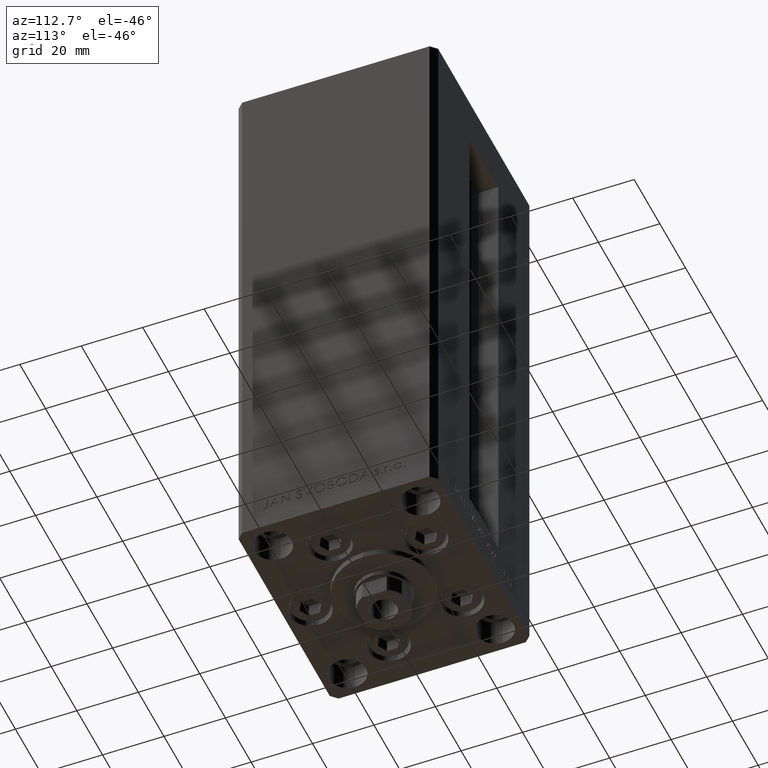
[diagram: clean part render]
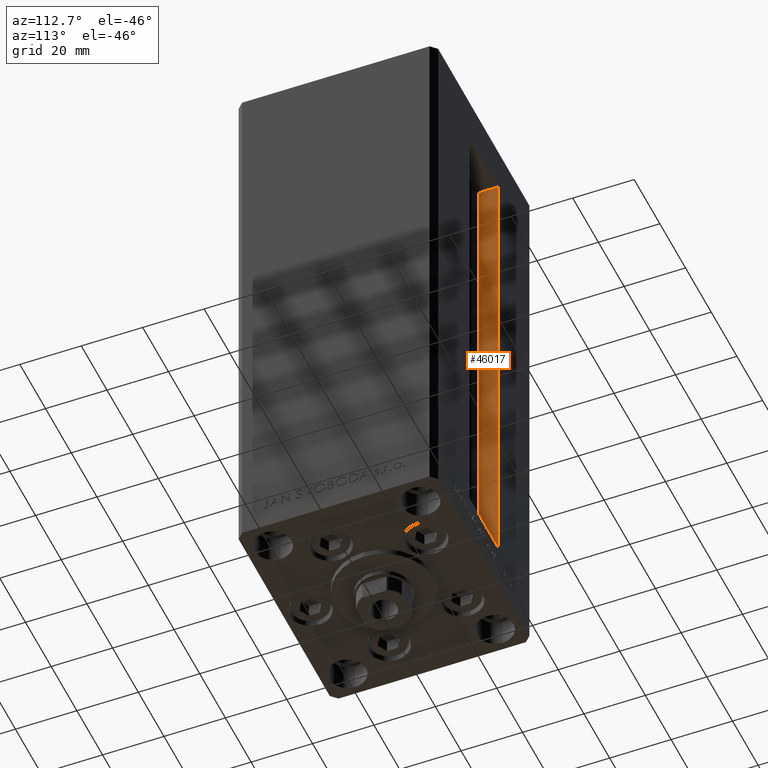
[diagram: same view with one face highlighted and labeled with its STEP entity id]
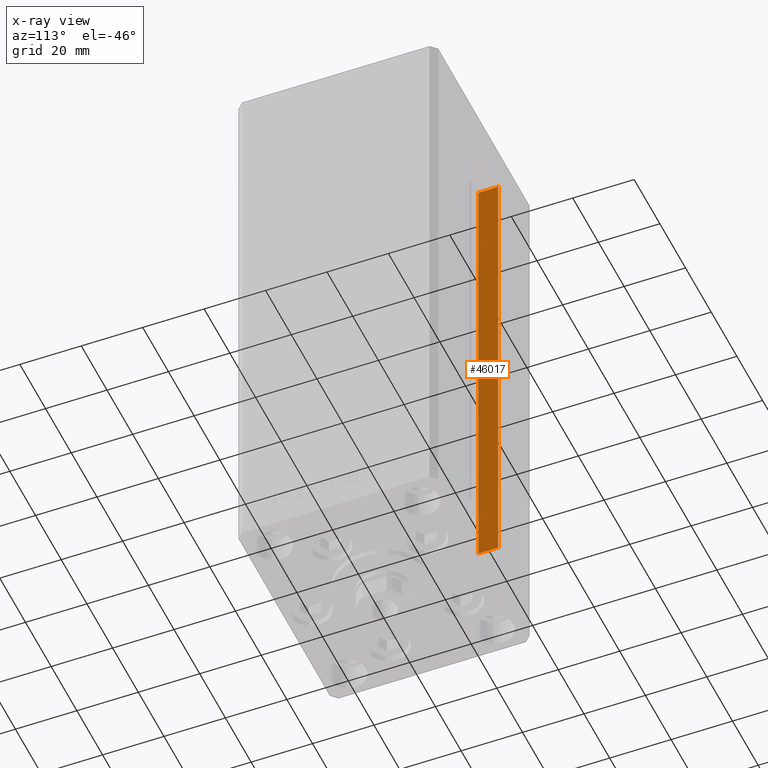
[diagram: x-ray of the same camera — body ghosted, the highlighted face saturated]
A machine part, auxiliary view. The second image highlights one B-rep face of the part: STEP entity #46017.
The next image is the same camera in x-ray: the body ghosted, the highlighted face saturated — about 0% of this face is hidden behind the body in this view.
In plain terms, the highlighted planar face has unit normal (-1, 0, 0).
Its self-contained STEP definition (entity closure, byte-faithful):
#3468 = DIRECTION ( 'NONE',  ( -0.000000000000000000, -0.000000000000000000, 1.000000000000000000 ) ) ;
#5169 = CARTESIAN_POINT ( 'NONE',  ( -11.25000000000000178, 32.49999999999999289, 0.000000000000000000 ) ) ;
#5950 = LINE ( 'NONE', #28579, #16881 ) ;
#6269 = ORIENTED_EDGE ( 'NONE', *, *, #41354, .F. ) ;
#6494 = AXIS2_PLACEMENT_3D ( 'NONE', #35198, #24151, #12557 ) ;
#6498 = LINE ( 'NONE', #11227, #29050 ) ;
#11227 = CARTESIAN_POINT ( 'NONE',  ( -11.25000000000000178, 25.99999999999999289, 0.000000000000000000 ) ) ;
#11952 = EDGE_CURVE ( 'NONE', #34766, #27546, #6498, .T. ) ;
#12557 = DIRECTION ( 'NONE',  ( 0.000000000000000000, 0.000000000000000000, 1.000000000000000000 ) ) ;
#16239 = EDGE_LOOP ( 'NONE', ( #18004, #41858, #43588, #6269 ) ) ;
#16881 = VECTOR ( 'NONE', #17252, 1000.000000000000000 ) ;
#16926 = CARTESIAN_POINT ( 'NONE',  ( -11.25000000000000178, 25.99999999999999289, 0.000000000000000000 ) ) ;
#17171 = DIRECTION ( 'NONE',  ( -0.000000000000000000, -1.000000000000000000, -0.000000000000000000 ) ) ;
#17252 = DIRECTION ( 'NONE',  ( 0.000000000000000000, 1.000000000000000000, 0.000000000000000000 ) ) ;
#18004 = ORIENTED_EDGE ( 'NONE', *, *, #11952, .F. ) ;
#18048 = CARTESIAN_POINT ( 'NONE',  ( -11.25000000000000178, 32.49999999999999289, 156.0000000000000000 ) ) ;
#19507 = LINE ( 'NONE', #5169, #49553 ) ;
#19871 = PLANE ( 'NONE',  #6494 ) ;
#21556 = CARTESIAN_POINT ( 'NONE',  ( -11.25000000000000178, 32.49999999999999289, 0.000000000000000000 ) ) ;
#21915 = CARTESIAN_POINT ( 'NONE',  ( -11.25000000000000178, 25.99999999999999289, 0.000000000000000000 ) ) ;
#24057 = VECTOR ( 'NONE', #17171, 1000.000000000000000 ) ;
#24151 = DIRECTION ( 'NONE',  ( -1.000000000000000000, 0.000000000000000000, 0.000000000000000000 ) ) ;
#27546 = VERTEX_POINT ( 'NONE', #49416 ) ;
#28579 = CARTESIAN_POINT ( 'NONE',  ( -11.25000000000000178, 0.000000000000000000, 156.0000000000000000 ) ) ;
#29050 = VECTOR ( 'NONE', #3468, 1000.000000000000000 ) ;
#34766 = VERTEX_POINT ( 'NONE', #21915 ) ;
#35098 = EDGE_CURVE ( 'NONE', #44709, #38276, #19507, .T. ) ;
#35198 = CARTESIAN_POINT ( 'NONE',  ( -11.25000000000000178, 25.99999999999999289, 0.000000000000000000 ) ) ;
#35702 = FACE_OUTER_BOUND ( 'NONE', #16239, .T. ) ;
#37913 = EDGE_CURVE ( 'NONE', #44709, #34766, #48565, .T. ) ;
#38276 = VERTEX_POINT ( 'NONE', #18048 ) ;
#41354 = EDGE_CURVE ( 'NONE', #27546, #38276, #5950, .T. ) ;
#41858 = ORIENTED_EDGE ( 'NONE', *, *, #37913, .F. ) ;
#43107 = DIRECTION ( 'NONE',  ( -0.000000000000000000, -0.000000000000000000, 1.000000000000000000 ) ) ;
#43588 = ORIENTED_EDGE ( 'NONE', *, *, #35098, .T. ) ;
#44709 = VERTEX_POINT ( 'NONE', #21556 ) ;
#46017 = ADVANCED_FACE ( 'NONE', ( #35702 ), #19871, .F. ) ;
#48565 = LINE ( 'NONE', #16926, #24057 ) ;
#49416 = CARTESIAN_POINT ( 'NONE',  ( -11.25000000000000178, 25.99999999999999289, 156.0000000000000000 ) ) ;
#49553 = VECTOR ( 'NONE', #43107, 1000.000000000000000 ) ;